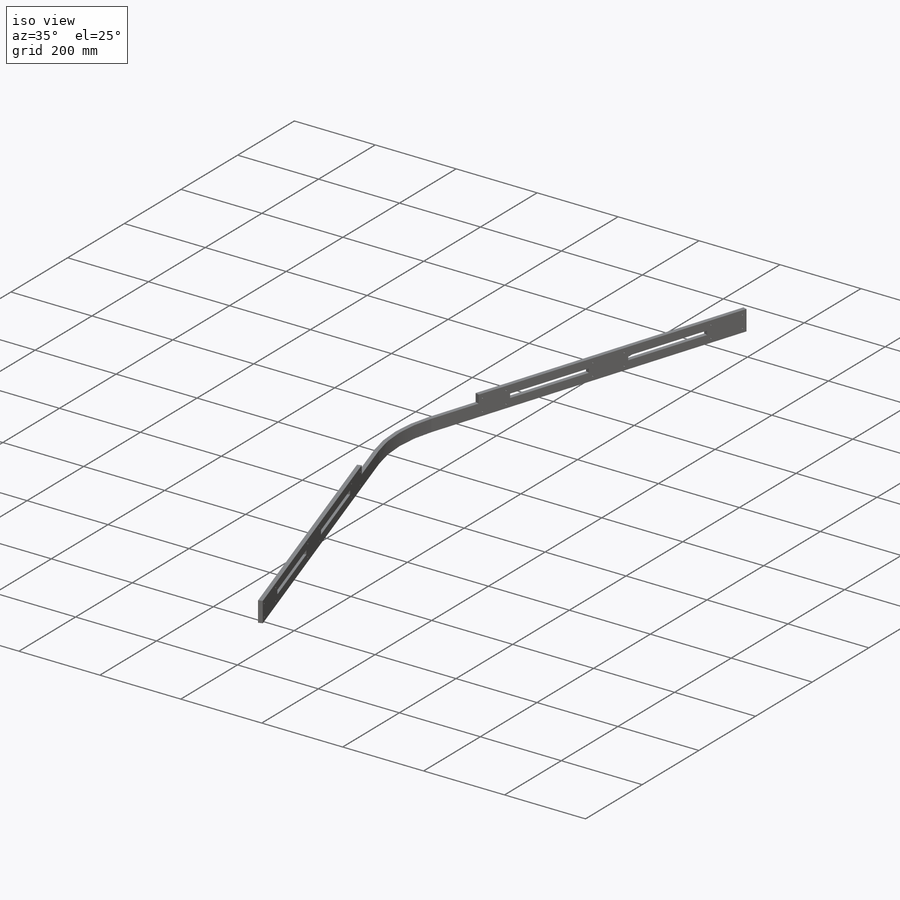
[diagram: iso view]
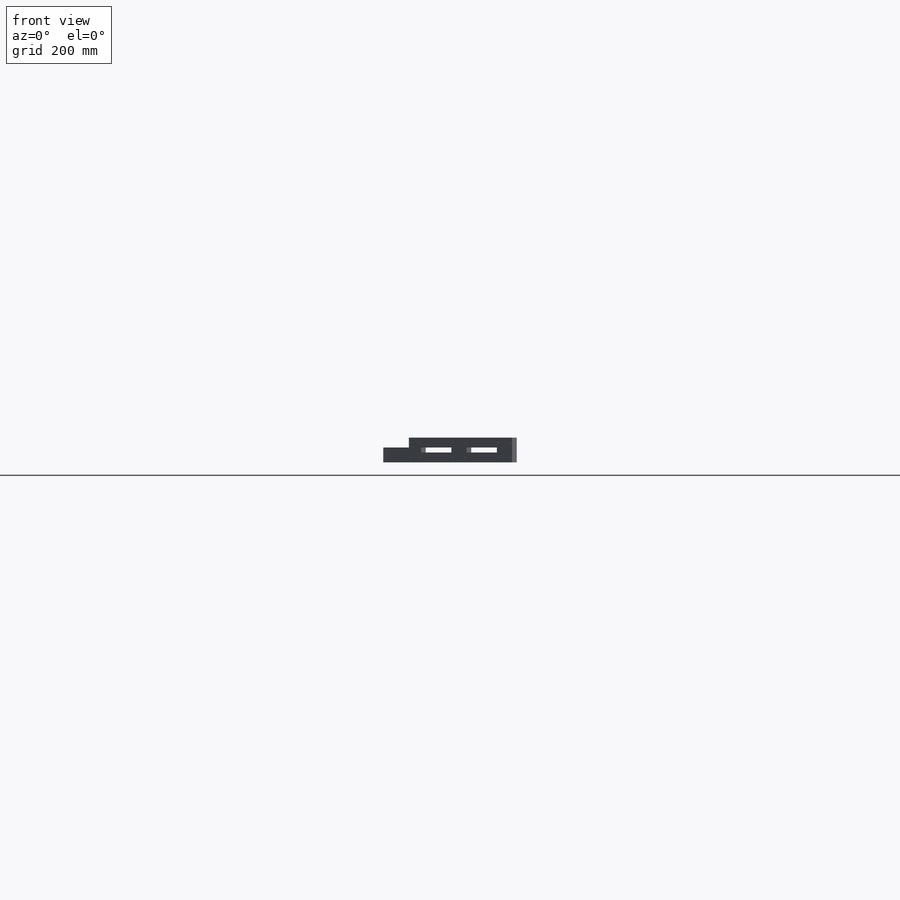
[diagram: front view]
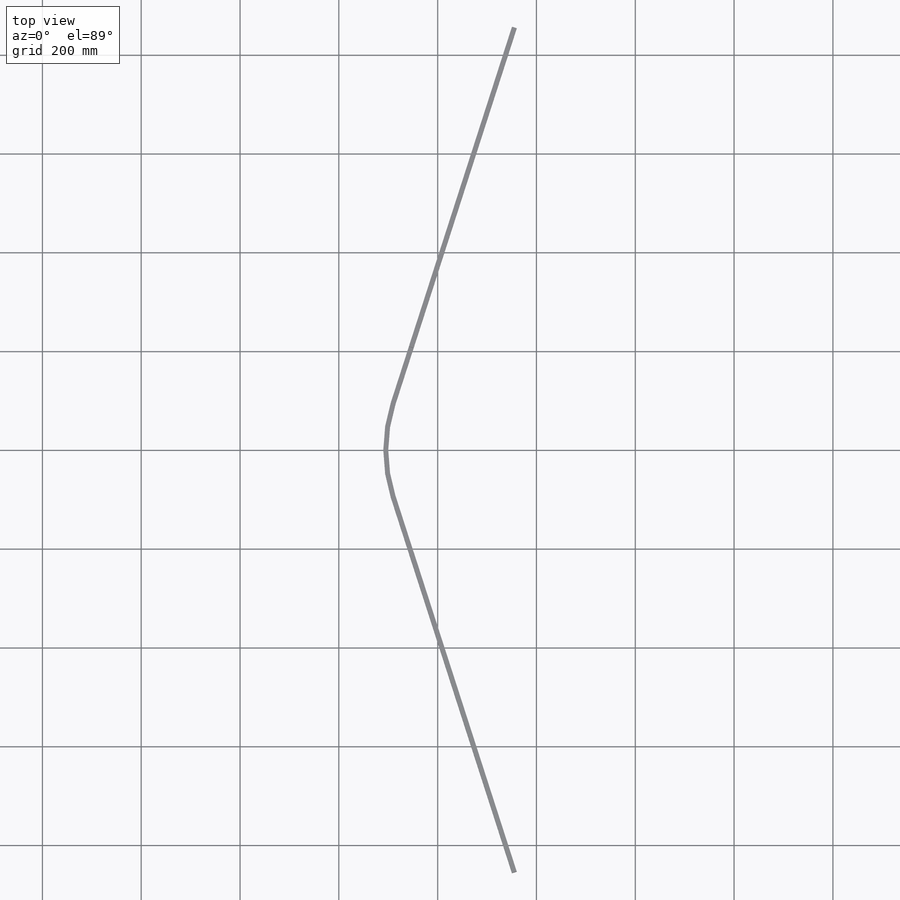
[diagram: top view]
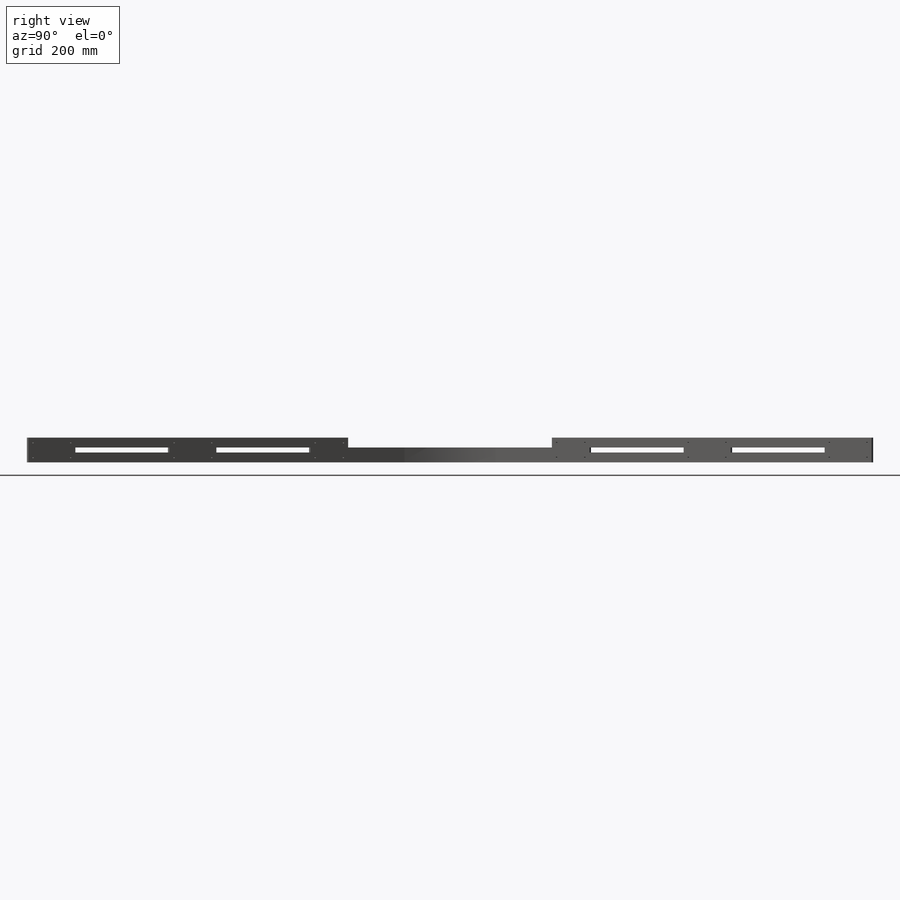
[diagram: right view]
SOLIDWORKS PART (.sldprt)
format: sldprt  version: not decoded by parser v0  size: 360,448 bytes
history: native  units: mm
features: sketch x5, extrude x3, material x1, cut_extrude x1, mirror x1 (+11 scaffold rows collapsed)
feature tree (22):
  scaffold x11  (default folders/planes/origin — collapsed)
  material  "Material <not specified>"
  sketch  "Sketch2"  dims[c1.D1=500.0mm c1.D2=10.0mm c1.D3=10.0mm c1.D4=5.0mm c1.D5=150.0mm c1.D6=150.0mm c1.D7=150.0mm c1.D8=60.0mm c1.D9=910.0mm c1.D10=780.0mm c1.D11=50.0mm c1.D12=30.0mm c2.D10=~513.303882mm c3.D10=~2.160824deg]
  sketch  "Sketch3"  dims[c1.D8=310.0mm c1.D1=10.0mm c1.D2=800.0mm c1.D3=100.0mm c1.D4=200.0mm c1.D5=100.0mm c1.D6=200.0mm c1.D7=100.0mm c2.D8=~9.878621mm c3.D8=20.0deg c4.D8=10.0mm c5.D8=10.0deg c5.D2=800.0mm]
  extrude  "Boss-Extrude1"  Depth=10mm
  sketch  "Sketch4"  dims[D1=120.0mm]
  extrude  "Boss-Extrude2"  Depth=20mm
  sketch  "Sketch5"
  extrude  "Boss-Extrude3"  Depth=20mm
  sketch  "Sketch8"  dims[D1=3.0mm D2=10.0mm D3=10.0mm D4=50.0mm D5=10.0mm]
  cut_extrude  "Cut-Extrude2"  [1 undecoded]
  mirror  "Mirror1"
decode coverage: 7 of 10 modeling features carry decoded parameters
note: ~ marks probable driven/reference dimensions
note: 1 parameter value undecoded
note: suppression state not decoded; provenance and decode notes live in map.json
